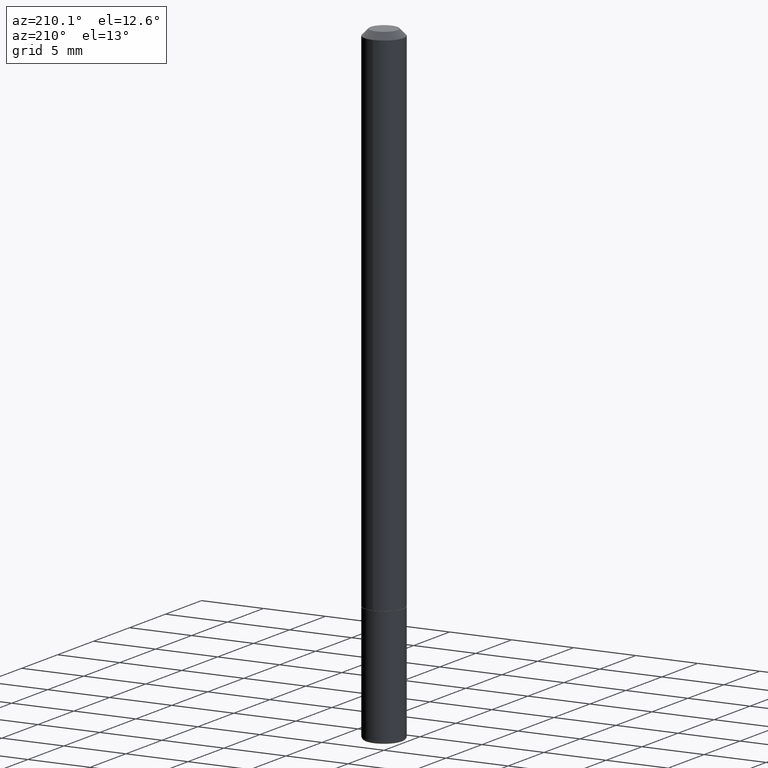
[diagram: clean part render]
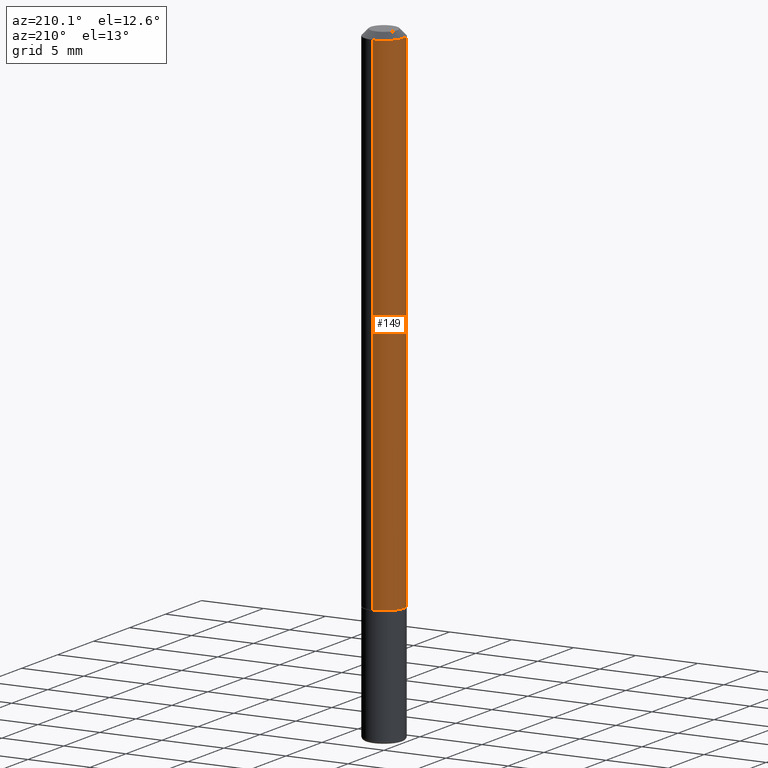
[diagram: same view with one face highlighted and labeled with its STEP entity id]
A machine part, auxiliary view. The second image highlights one B-rep face of the part: STEP entity #149.
In plain terms, the highlighted cylindrical surface (edge-blend (fillet) strip) has radius 1.5875 mm, axis along (-0, 0, 1).
Its self-contained STEP definition (entity closure, byte-faithful):
#4 = EDGE_CURVE ( 'NONE', #257, #189, #352, .T. ) ;
#6 = CARTESIAN_POINT ( 'NONE',  ( -4.364351673553526701E-16, -0.06250000000000577316, -1.623999999999999888 ) ) ;
#22 = AXIS2_PLACEMENT_3D ( 'NONE', #176, #279, #282 ) ;
#24 = DIRECTION ( 'NONE',  ( -2.455550444361550875E-29, 3.477043859163310348E-15, 1.000000000000000000 ) ) ;
#47 = DIRECTION ( 'NONE',  ( -6.982962677686265922E-15, -1.000000000000000000, 3.483106191921934765E-15 ) ) ;
#51 = CARTESIAN_POINT ( 'NONE',  ( 0.000000000000000000, 0.000000000000000000, 0.000000000000000000 ) ) ;
#58 = CYLINDRICAL_SURFACE ( 'NONE', #309, 0.06250000000000006939 ) ;
#63 = AXIS2_PLACEMENT_3D ( 'NONE', #204, #335, #47 ) ;
#68 = EDGE_CURVE ( 'NONE', #392, #189, #242, .T. ) ;
#80 = VECTOR ( 'NONE', #120, 39.37007874015748143 ) ;
#81 = VECTOR ( 'NONE', #401, 39.37007874015748143 ) ;
#105 = EDGE_CURVE ( 'NONE', #252, #257, #274, .T. ) ;
#120 = DIRECTION ( 'NONE',  ( -2.455550444361550595E-29, 3.477043859163310348E-15, 1.000000000000000000 ) ) ;
#122 = FACE_OUTER_BOUND ( 'NONE', #400, .T. ) ;
#140 = CARTESIAN_POINT ( 'NONE',  ( 4.440892098500834224E-16, 0.06249999999999447664, -1.624000000000000554 ) ) ;
#149 = ADVANCED_FACE ( 'NONE', ( #122 ), #58, .T. ) ;
#176 = CARTESIAN_POINT ( 'NONE',  ( 3.987813921643159440E-29, -5.646719227281216646E-15, -1.624000000000000110 ) ) ;
#187 = ORIENTED_EDGE ( 'NONE', *, *, #4, .T. ) ;
#189 = VERTEX_POINT ( 'NONE', #381 ) ;
#204 = CARTESIAN_POINT ( 'NONE',  ( 4.911100888723118566E-31, -6.954087718326643672E-17, -0.02000000000000006981 ) ) ;
#242 = CIRCLE ( 'NONE', #63, 0.06250000000000001388 ) ;
#252 = VERTEX_POINT ( 'NONE', #140 ) ;
#257 = VERTEX_POINT ( 'NONE', #6 ) ;
#264 = LINE ( 'NONE', #295, #81 ) ;
#274 = CIRCLE ( 'NONE', #22, 0.06250000000000012490 ) ;
#279 = DIRECTION ( 'NONE',  ( -2.455550444361550875E-29, 3.477043859163310348E-15, 1.000000000000000000 ) ) ;
#282 = DIRECTION ( 'NONE',  ( -6.982962677686265922E-15, -1.000000000000000000, 4.370956789862812472E-15 ) ) ;
#295 = CARTESIAN_POINT ( 'NONE',  ( 4.440892098500630106E-16, 0.06250000000000006939, -2.173152411977071433E-16 ) ) ;
#296 = CARTESIAN_POINT ( 'NONE',  ( 4.364351673553922118E-16, 0.06249999999999995143, -0.02000000000000028491 ) ) ;
#299 = ORIENTED_EDGE ( 'NONE', *, *, #337, .F. ) ;
#309 = AXIS2_PLACEMENT_3D ( 'NONE', #51, #24, #408 ) ;
#317 = ORIENTED_EDGE ( 'NONE', *, *, #105, .T. ) ;
#335 = DIRECTION ( 'NONE',  ( -2.455550444361550875E-29, 3.477043859163310348E-15, 1.000000000000000000 ) ) ;
#337 = EDGE_CURVE ( 'NONE', #252, #392, #264, .T. ) ;
#352 = LINE ( 'NONE', #382, #80 ) ;
#376 = ORIENTED_EDGE ( 'NONE', *, *, #68, .F. ) ;
#381 = CARTESIAN_POINT ( 'NONE',  ( -4.287811248607203282E-16, -0.06250000000000008327, -0.01999999999999985123 ) ) ;
#382 = CARTESIAN_POINT ( 'NONE',  ( -4.364351673553921131E-16, -0.06250000000000006939, 2.173152411977071433E-16 ) ) ;
#392 = VERTEX_POINT ( 'NONE', #296 ) ;
#400 = EDGE_LOOP ( 'NONE', ( #299, #317, #187, #376 ) ) ;
#401 = DIRECTION ( 'NONE',  ( -2.455550444361550595E-29, 3.477043859163310348E-15, 1.000000000000000000 ) ) ;
#408 = DIRECTION ( 'NONE',  ( -6.982962677686265922E-15, -1.000000000000000000, 3.477043859163310348E-15 ) ) ;